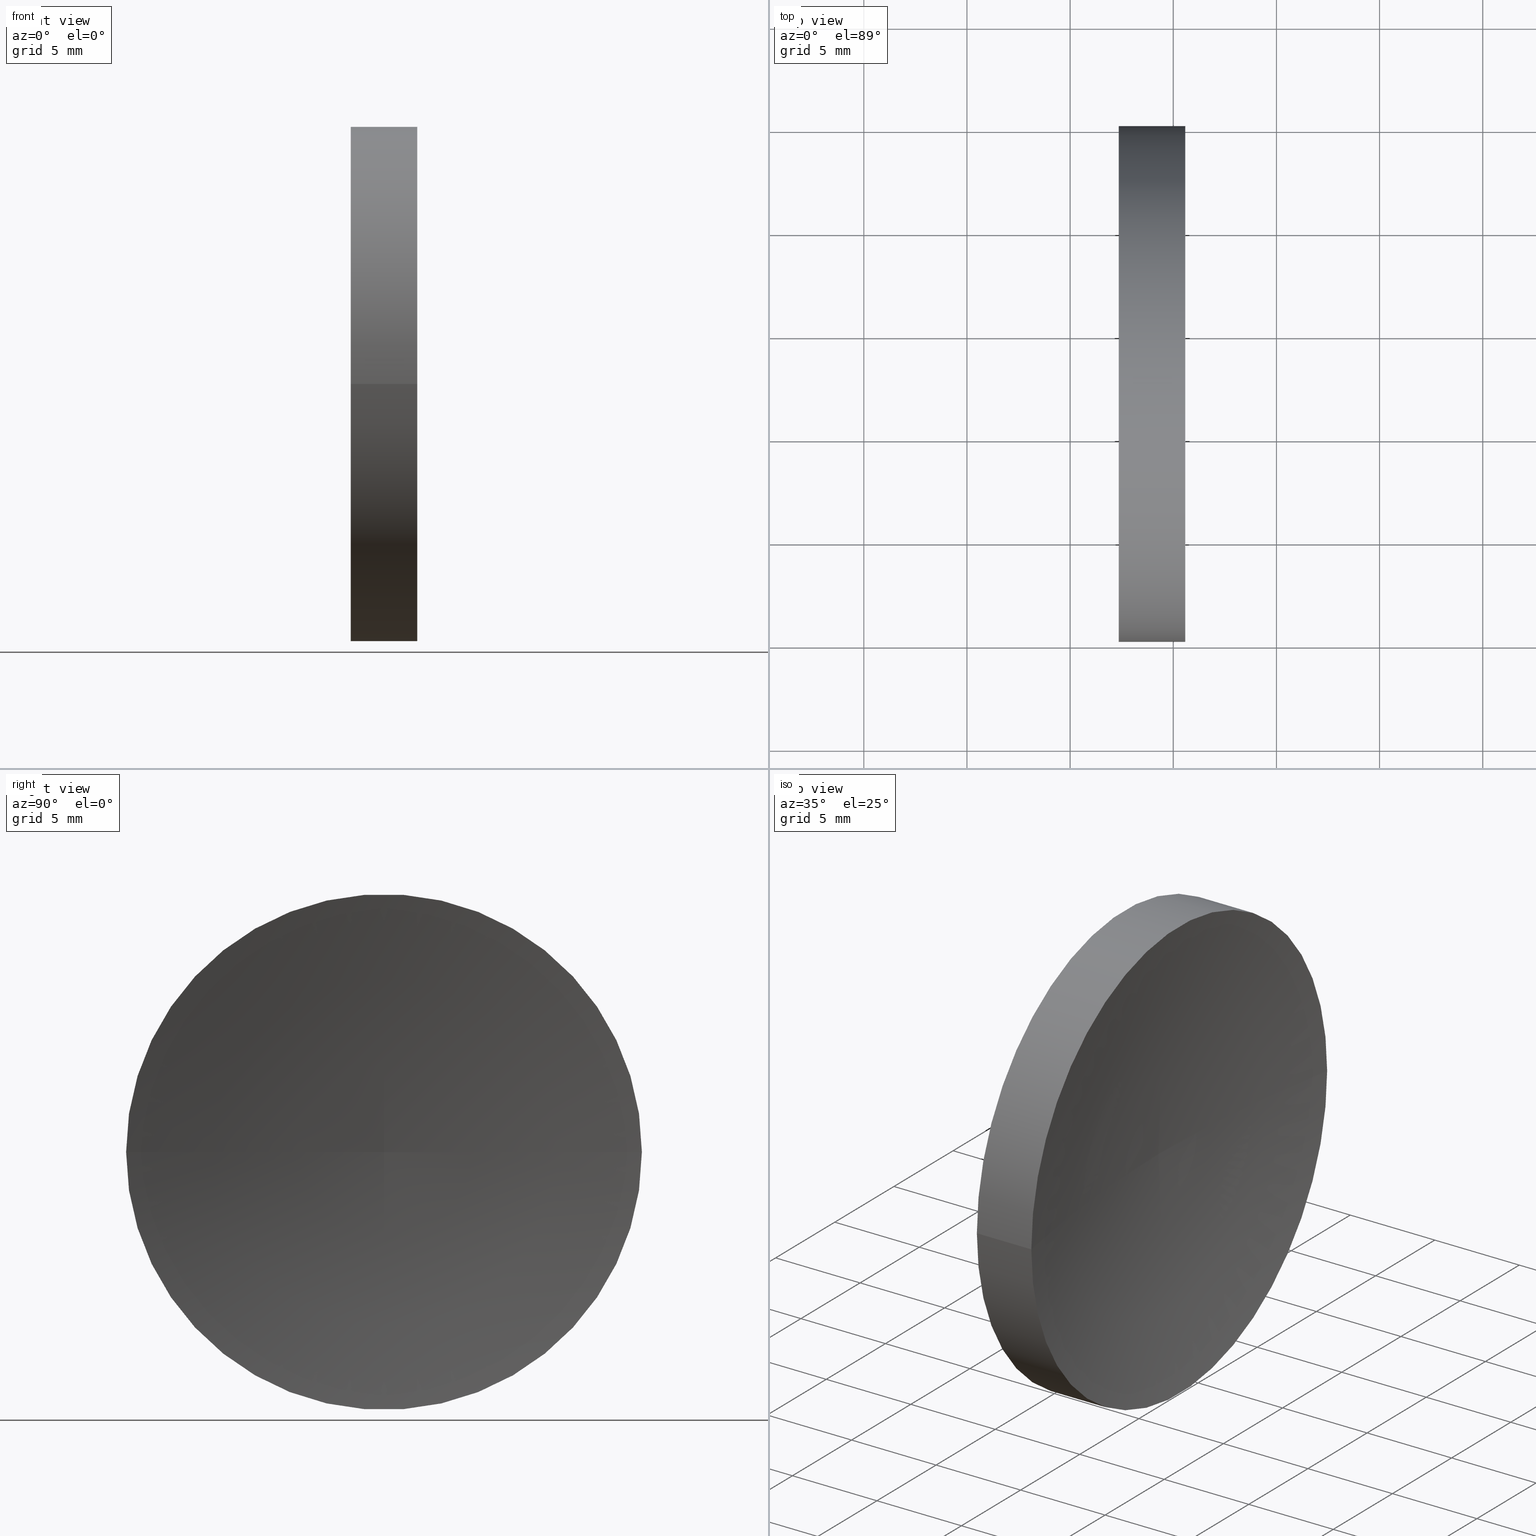
[diagram: canonical four-view strip — front | top / right | iso, engineering-drawing reading convention]
A machine part, canonical four-view strip (front | top / right | iso — engineering-drawing reading convention). The complete STEP part file that produces these views, byte-faithful:
ISO-10303-21;
HEADER;
FILE_DESCRIPTION (( 'STEP AP214' ),
    '1' );
FILE_NAME ('120156.STEP',
    '2019-06-20T06:32:28',
    ( '' ),
    ( '' ),
    'SwSTEP 2.0',
    'SolidWorks 2016',
    '' );
FILE_SCHEMA (( 'AUTOMOTIVE_DESIGN' ));
ENDSEC;

DATA;
#1 = FACE_OUTER_BOUND ( 'NONE', #152, .T. ) ;
#2 = AXIS2_PLACEMENT_3D ( 'NONE', #97, #69, #58 ) ;
#3 = DIRECTION ( 'NONE',  ( -5.551115123125784700E-016, -1.000000000000000000, 0.0000000000000000000 ) ) ;
#4 = SURFACE_STYLE_USAGE ( .BOTH. , #147 ) ;
#5 = FACE_OUTER_BOUND ( 'NONE', #15, .T. ) ;
#6 = CARTESIAN_POINT ( 'NONE',  ( 123.9081901580211100, 32.57872591329306300, 0.0000000000000000000 ) ) ;
#7 =( NAMED_UNIT ( * ) SI_UNIT ( $, .STERADIAN. ) SOLID_ANGLE_UNIT ( ) );
#8 = COLOUR_RGB ( '',1.000000000000000000, 1.000000000000000000, 1.000000000000000000 ) ;
#9 = EDGE_CURVE ( 'NONE', #151, #24, #90, .T. ) ;
#10 = CIRCLE ( 'NONE', #39, 64.54999999999998300 ) ;
#11 = PRODUCT_DEFINITION ( 'δ֪', '', #73, #131 ) ;
#12 = CARTESIAN_POINT ( 'NONE',  ( 123.9081901580211100, 32.58086067571049700, 0.0000000000000000000 ) ) ;
#13 = DIRECTION ( 'NONE',  ( -5.551115123125782700E-016, -1.000000000000000000, 0.0000000000000000000 ) ) ;
#14 = CARTESIAN_POINT ( 'NONE',  ( 60.58047800621231000, 32.57872591329309800, 0.0000000000000000000 ) ) ;
#15 = EDGE_LOOP ( 'NONE', ( #62, #22, #142 ) ) ;
#16 = SURFACE_STYLE_FILL_AREA ( #48 ) ;
#17 = DIRECTION ( 'NONE',  ( -1.000000000000000000, 4.853228644174421400E-016, -0.0000000000000000000 ) ) ;
#18 = CARTESIAN_POINT ( 'NONE',  ( 0.0000000000000000000, 0.0000000000000000000, 0.0000000000000000000 ) ) ;
#19 =( LENGTH_UNIT ( ) NAMED_UNIT ( * ) SI_UNIT ( .MILLI., .METRE. ) );
#20 = CLOSED_SHELL ( 'NONE', ( #130, #70, #113, #83, #154 ) ) ;
#21 = MECHANICAL_DESIGN_GEOMETRIC_PRESENTATION_REPRESENTATION (  '', ( #133 ), #29 ) ;
#22 = ORIENTED_EDGE ( 'NONE', *, *, #23, .T. ) ;
#23 = EDGE_CURVE ( 'NONE', #151, #99, #110, .T. ) ;
#24 = VERTEX_POINT ( 'NONE', #141 ) ;
#25 = UNCERTAINTY_MEASURE_WITH_UNIT (LENGTH_MEASURE( 1.000000000000000100E-005 ), #19, 'distance_accuracy_value', 'NONE');
#26 = EDGE_CURVE ( 'NONE', #108, #55, #145, .T. ) ;
#27 = CARTESIAN_POINT ( 'NONE',  ( 57.35819015802110200, 20.07872591329309800, 0.0000000000000000000 ) ) ;
#28 = PRODUCT_DEFINITION_SHAPE ( 'NONE', 'NONE',  #11 ) ;
#29 =( GEOMETRIC_REPRESENTATION_CONTEXT ( 3 ) GLOBAL_UNCERTAINTY_ASSIGNED_CONTEXT ( ( #144 ) ) GLOBAL_UNIT_ASSIGNED_CONTEXT ( ( #86, #118, #7 ) ) REPRESENTATION_CONTEXT ( 'NONE', 'WORKASPACE' ) );
#30 = DIRECTION ( 'NONE',  ( -5.551115123125779700E-016, -1.000000000000000000, 0.0000000000000000000 ) ) ;
#31 = APPLICATION_PROTOCOL_DEFINITION ( 'draft international standard', 'automotive_design', 1998, #119 ) ;
#32 = CARTESIAN_POINT ( 'NONE',  ( 55.00739462442118800, 45.07872591329309100, 1.530808498934191500E-015 ) ) ;
#33 = STYLED_ITEM ( 'NONE', ( #149 ), #127 ) ;
#34 =( NAMED_UNIT ( * ) SI_UNIT ( $, .STERADIAN. ) SOLID_ANGLE_UNIT ( ) );
#35 = PRODUCT_CONTEXT ( 'NONE', #119, 'mechanical' ) ;
#36 = APPLICATION_CONTEXT ( 'automotive_design' ) ;
#37 = FACE_OUTER_BOUND ( 'NONE', #87, .T. ) ;
#38 = CYLINDRICAL_SURFACE ( 'NONE', #125, 12.50000000000000000 ) ;
#39 = AXIS2_PLACEMENT_3D ( 'NONE', #12, #72, #140 ) ;
#40 = VECTOR ( 'NONE', #60, 1000.000000000000000 ) ;
#41 = EDGE_CURVE ( 'NONE', #24, #99, #10, .T. ) ;
#42 = CARTESIAN_POINT ( 'NONE',  ( 123.9081901580211100, 32.57659115087562900, -2.614329961454108600E-019 ) ) ;
#43 = FACE_OUTER_BOUND ( 'NONE', #124, .T. ) ;
#44 = DIRECTION ( 'NONE',  ( -5.551115123125784700E-016, -1.000000000000000000, 0.0000000000000000000 ) ) ;
#45 = COLOUR_RGB ( '',1.000000000000000000, 1.000000000000000000, 1.000000000000000000 ) ;
#46 = CARTESIAN_POINT ( 'NONE',  ( 57.35819015802111700, 45.07872591329309100, 1.530808498934191900E-015 ) ) ;
#47 = PRESENTATION_STYLE_ASSIGNMENT (( #4 ) ) ;
#48 = FILL_AREA_STYLE ('',( #146 ) ) ;
#49 = DIRECTION ( 'NONE',  ( 0.0000000000000000000, 0.0000000000000000000, 1.000000000000000000 ) ) ;
#50 = APPLICATION_PROTOCOL_DEFINITION ( 'draft international standard', 'automotive_design', 1998, #36 ) ;
#51 = AXIS2_PLACEMENT_3D ( 'NONE', #14, #17, #30 ) ;
#52 = ORIENTED_EDGE ( 'NONE', *, *, #41, .T. ) ;
#53 = AXIS2_PLACEMENT_3D ( 'NONE', #42, #104, #115 ) ;
#54 = ORIENTED_EDGE ( 'NONE', *, *, #26, .T. ) ;
#55 = VERTEX_POINT ( 'NONE', #27 ) ;
#56 = CARTESIAN_POINT ( 'NONE',  ( 57.35819015802111000, 32.57872591329309800, 0.0000000000000000000 ) ) ;
#57 = DIRECTION ( 'NONE',  ( -1.000000000000000000, 4.853228644174421400E-016, -0.0000000000000000000 ) ) ;
#58 = DIRECTION ( 'NONE',  ( -5.551115123125779700E-016, -1.000000000000000000, 0.0000000000000000000 ) ) ;
#59 = CARTESIAN_POINT ( 'NONE',  ( 123.9081901580211100, 32.57872591329306300, 0.0000000000000000000 ) ) ;
#60 = DIRECTION ( 'NONE',  ( -1.000000000000000000, 4.853228644174421400E-016, -0.0000000000000000000 ) ) ;
#61 =( NAMED_UNIT ( * ) PLANE_ANGLE_UNIT ( ) SI_UNIT ( $, .RADIAN. ) );
#62 = ORIENTED_EDGE ( 'NONE', *, *, #9, .F. ) ;
#63 = FILL_AREA_STYLE_COLOUR ( '', #8 ) ;
#64 = DIRECTION ( 'NONE',  ( -4.853228644174421400E-016, -1.000000000000000000, 0.0000000000000000000 ) ) ;
#65 = CARTESIAN_POINT ( 'NONE',  ( 57.35819015802111000, 32.57872591329309800, 0.0000000000000000000 ) ) ;
#66 = AXIS2_PLACEMENT_3D ( 'NONE', #65, #143, #3 ) ;
#67 = PRESENTATION_LAYER_ASSIGNMENT (  '', '', ( #33 ) ) ;
#68 = ORIENTED_EDGE ( 'NONE', *, *, #92, .F. ) ;
#69 = DIRECTION ( 'NONE',  ( -1.000000000000000000, 4.853228644174421400E-016, -0.0000000000000000000 ) ) ;
#70 = ADVANCED_FACE ( 'NONE', ( #5 ), #81, .F. ) ;
#71 = EDGE_LOOP ( 'NONE', ( #94, #95, #68, #82 ) ) ;
#72 = DIRECTION ( 'NONE',  ( 0.0000000000000000000, -0.0000000000000000000, -1.000000000000000000 ) ) ;
#73 = PRODUCT_DEFINITION_FORMATION_WITH_SPECIFIED_SOURCE ( '�κ�', '', #148, .NOT_KNOWN. ) ;
#74 = DIRECTION ( 'NONE',  ( -1.000000000000000000, 4.853228644174421400E-016, -0.0000000000000000000 ) ) ;
#75 = DIRECTION ( 'NONE',  ( -1.000000000000000000, 4.853228644174421400E-016, -0.0000000000000000000 ) ) ;
#76 =( GEOMETRIC_REPRESENTATION_CONTEXT ( 3 ) GLOBAL_UNCERTAINTY_ASSIGNED_CONTEXT ( ( #100 ) ) GLOBAL_UNIT_ASSIGNED_CONTEXT ( ( #134, #77, #34 ) ) REPRESENTATION_CONTEXT ( 'NONE', 'WORKASPACE' ) );
#77 =( NAMED_UNIT ( * ) PLANE_ANGLE_UNIT ( ) SI_UNIT ( $, .RADIAN. ) );
#78 = CARTESIAN_POINT ( 'NONE',  ( 55.00739462442117400, 20.07872591329309500, 0.0000000000000000000 ) ) ;
#79 =( GEOMETRIC_REPRESENTATION_CONTEXT ( 3 ) GLOBAL_UNCERTAINTY_ASSIGNED_CONTEXT ( ( #25 ) ) GLOBAL_UNIT_ASSIGNED_CONTEXT ( ( #19, #61, #107 ) ) REPRESENTATION_CONTEXT ( 'NONE', 'WORKASPACE' ) );
#80 = PRODUCT_RELATED_PRODUCT_CATEGORY ( 'part', '', ( #148 ) ) ;
#81 = TOROIDAL_SURFACE ( 'NONE', #137, -0.002134762417436853900, 64.54999999999998300 ) ;
#82 = ORIENTED_EDGE ( 'NONE', *, *, #114, .F. ) ;
#83 = ADVANCED_FACE ( 'NONE', ( #43 ), #102, .T. ) ;
#84 = DIRECTION ( 'NONE',  ( -1.000000000000000000, 4.853228644174421400E-016, -0.0000000000000000000 ) ) ;
#85 = CARTESIAN_POINT ( 'NONE',  ( 55.00739462442118100, 32.57872591329309800, 0.0000000000000000000 ) ) ;
#86 =( LENGTH_UNIT ( ) NAMED_UNIT ( * ) SI_UNIT ( .MILLI., .METRE. ) );
#87 = EDGE_LOOP ( 'NONE', ( #123, #129, #52 ) ) ;
#88 = FILL_AREA_STYLE ('',( #63 ) ) ;
#89 = CARTESIAN_POINT ( 'NONE',  ( 60.58047800621231700, 45.07872591329309100, 1.530808498934191300E-015 ) ) ;
#90 = CIRCLE ( 'NONE', #2, 12.50000000000000700 ) ;
#91 = ORIENTED_EDGE ( 'NONE', *, *, #114, .T. ) ;
#92 = EDGE_CURVE ( 'NONE', #55, #108, #138, .T. ) ;
#93 = VECTOR ( 'NONE', #155, 1000.000000000000000 ) ;
#94 = ORIENTED_EDGE ( 'NONE', *, *, #162, .T. ) ;
#95 = ORIENTED_EDGE ( 'NONE', *, *, #120, .T. ) ;
#96 = PRESENTATION_LAYER_ASSIGNMENT (  '', '', ( #133 ) ) ;
#97 = CARTESIAN_POINT ( 'NONE',  ( 60.58047800621231000, 32.57872591329309800, 0.0000000000000000000 ) ) ;
#98 = DIRECTION ( 'NONE',  ( -1.000000000000000000, 4.853228644174421400E-016, -0.0000000000000000000 ) ) ;
#99 = VERTEX_POINT ( 'NONE', #160 ) ;
#100 = UNCERTAINTY_MEASURE_WITH_UNIT (LENGTH_MEASURE( 1.000000000000000100E-005 ), #134, 'distance_accuracy_value', 'NONE');
#101 = MECHANICAL_DESIGN_GEOMETRIC_PRESENTATION_REPRESENTATION (  '', ( #33 ), #76 ) ;
#102 = CYLINDRICAL_SURFACE ( 'NONE', #150, 12.50000000000000000 ) ;
#103 = SHAPE_DEFINITION_REPRESENTATION ( #28, #127 ) ;
#104 = DIRECTION ( 'NONE',  ( -5.943490924618453600E-032, -1.224646799147353200E-016, 1.000000000000000000 ) ) ;
#105 = SURFACE_STYLE_FILL_AREA ( #88 ) ;
#106 = SURFACE_SIDE_STYLE ('',( #16 ) ) ;
#107 =( NAMED_UNIT ( * ) SI_UNIT ( $, .STERADIAN. ) SOLID_ANGLE_UNIT ( ) );
#108 = VERTEX_POINT ( 'NONE', #46 ) ;
#109 = ORIENTED_EDGE ( 'NONE', *, *, #9, .T. ) ;
#110 = CIRCLE ( 'NONE', #53, 64.54999999999998300 ) ;
#111 = AXIS2_PLACEMENT_3D ( 'NONE', #56, #84, #44 ) ;
#112 = ORIENTED_EDGE ( 'NONE', *, *, #26, .F. ) ;
#113 = ADVANCED_FACE ( 'NONE', ( #37 ), #166, .F. ) ;
#114 = EDGE_CURVE ( 'NONE', #24, #55, #161, .T. ) ;
#115 = DIRECTION ( 'NONE',  ( 0.0000000000000000000, -1.000000000000000000, -1.224646799147353000E-016 ) ) ;
#116 = DIRECTION ( 'NONE',  ( 1.000000000000000000, 0.0000000000000000000, 0.0000000000000000000 ) ) ;
#117 = ORIENTED_EDGE ( 'NONE', *, *, #120, .F. ) ;
#118 =( NAMED_UNIT ( * ) PLANE_ANGLE_UNIT ( ) SI_UNIT ( $, .RADIAN. ) );
#119 = APPLICATION_CONTEXT ( 'automotive_design' ) ;
#120 = EDGE_CURVE ( 'NONE', #151, #108, #126, .T. ) ;
#121 = DIRECTION ( 'NONE',  ( -5.551115123125782700E-016, -1.000000000000000000, 0.0000000000000000000 ) ) ;
#122 = PLANE ( 'NONE',  #158 ) ;
#123 = ORIENTED_EDGE ( 'NONE', *, *, #23, .F. ) ;
#124 = EDGE_LOOP ( 'NONE', ( #117, #109, #91, #112 ) ) ;
#125 = AXIS2_PLACEMENT_3D ( 'NONE', #85, #98, #13 ) ;
#126 = LINE ( 'NONE', #32, #93 ) ;
#127 = ADVANCED_BREP_SHAPE_REPRESENTATION ( '120156', ( #156, #163 ), #79 ) ;
#128 = CARTESIAN_POINT ( 'NONE',  ( 55.00739462442118100, 32.57872591329309800, 0.0000000000000000000 ) ) ;
#129 = ORIENTED_EDGE ( 'NONE', *, *, #162, .F. ) ;
#130 = ADVANCED_FACE ( 'NONE', ( #139 ), #38, .T. ) ;
#131 = PRODUCT_DEFINITION_CONTEXT ( 'detailed design', #36, 'design' ) ;
#132 = SURFACE_STYLE_USAGE ( .BOTH. , #106 ) ;
#133 = STYLED_ITEM ( 'NONE', ( #47 ), #156 ) ;
#134 =( LENGTH_UNIT ( ) NAMED_UNIT ( * ) SI_UNIT ( .MILLI., .METRE. ) );
#135 = DIRECTION ( 'NONE',  ( 4.853228644174421400E-016, 1.000000000000000000, 0.0000000000000000000 ) ) ;
#136 = CIRCLE ( 'NONE', #51, 12.50000000000000700 ) ;
#137 = AXIS2_PLACEMENT_3D ( 'NONE', #59, #74, #153 ) ;
#138 = CIRCLE ( 'NONE', #66, 12.49999999999999600 ) ;
#139 = FACE_OUTER_BOUND ( 'NONE', #71, .T. ) ;
#140 = DIRECTION ( 'NONE',  ( -1.000000000000000000, 0.0000000000000000000, 0.0000000000000000000 ) ) ;
#141 = CARTESIAN_POINT ( 'NONE',  ( 60.58047800621231000, 20.07872591329309100, 0.0000000000000000000 ) ) ;
#142 = ORIENTED_EDGE ( 'NONE', *, *, #41, .F. ) ;
#143 = DIRECTION ( 'NONE',  ( -1.000000000000000000, 4.853228644174421400E-016, -0.0000000000000000000 ) ) ;
#144 = UNCERTAINTY_MEASURE_WITH_UNIT (LENGTH_MEASURE( 1.000000000000000100E-005 ), #86, 'distance_accuracy_value', 'NONE');
#145 = CIRCLE ( 'NONE', #111, 12.49999999999999600 ) ;
#146 = FILL_AREA_STYLE_COLOUR ( '', #45 ) ;
#147 = SURFACE_SIDE_STYLE ('',( #105 ) ) ;
#148 = PRODUCT ( '120156', '120156', '', ( #35 ) ) ;
#149 = PRESENTATION_STYLE_ASSIGNMENT (( #132 ) ) ;
#150 = AXIS2_PLACEMENT_3D ( 'NONE', #128, #57, #121 ) ;
#151 = VERTEX_POINT ( 'NONE', #89 ) ;
#152 = EDGE_LOOP ( 'NONE', ( #164, #54 ) ) ;
#153 = DIRECTION ( 'NONE',  ( -4.853228644174421400E-016, -1.000000000000000000, 0.0000000000000000000 ) ) ;
#154 = ADVANCED_FACE ( 'NONE', ( #1 ), #122, .F. ) ;
#155 = DIRECTION ( 'NONE',  ( -1.000000000000000000, 4.853228644174421400E-016, -0.0000000000000000000 ) ) ;
#156 = MANIFOLD_SOLID_BREP ( '��ת1', #20 ) ;
#157 = DIRECTION ( 'NONE',  ( 1.000000000000000000, -4.853228644174421400E-016, 0.0000000000000000000 ) ) ;
#158 = AXIS2_PLACEMENT_3D ( 'NONE', #159, #157, #135 ) ;
#159 = CARTESIAN_POINT ( 'NONE',  ( 57.35819015802111700, 32.57872591329309100, 0.0000000000000000000 ) ) ;
#160 = CARTESIAN_POINT ( 'NONE',  ( 59.35819019332097200, 32.57872591329309800, 0.0000000000000000000 ) ) ;
#161 = LINE ( 'NONE', #78, #40 ) ;
#162 = EDGE_CURVE ( 'NONE', #24, #151, #136, .T. ) ;
#163 = AXIS2_PLACEMENT_3D ( 'NONE', #18, #49, #116 ) ;
#164 = ORIENTED_EDGE ( 'NONE', *, *, #92, .T. ) ;
#165 = AXIS2_PLACEMENT_3D ( 'NONE', #6, #75, #64 ) ;
#166 = TOROIDAL_SURFACE ( 'NONE', #165, -0.002134762417436853900, 64.54999999999998300 ) ;
ENDSEC;
END-ISO-10303-21;
